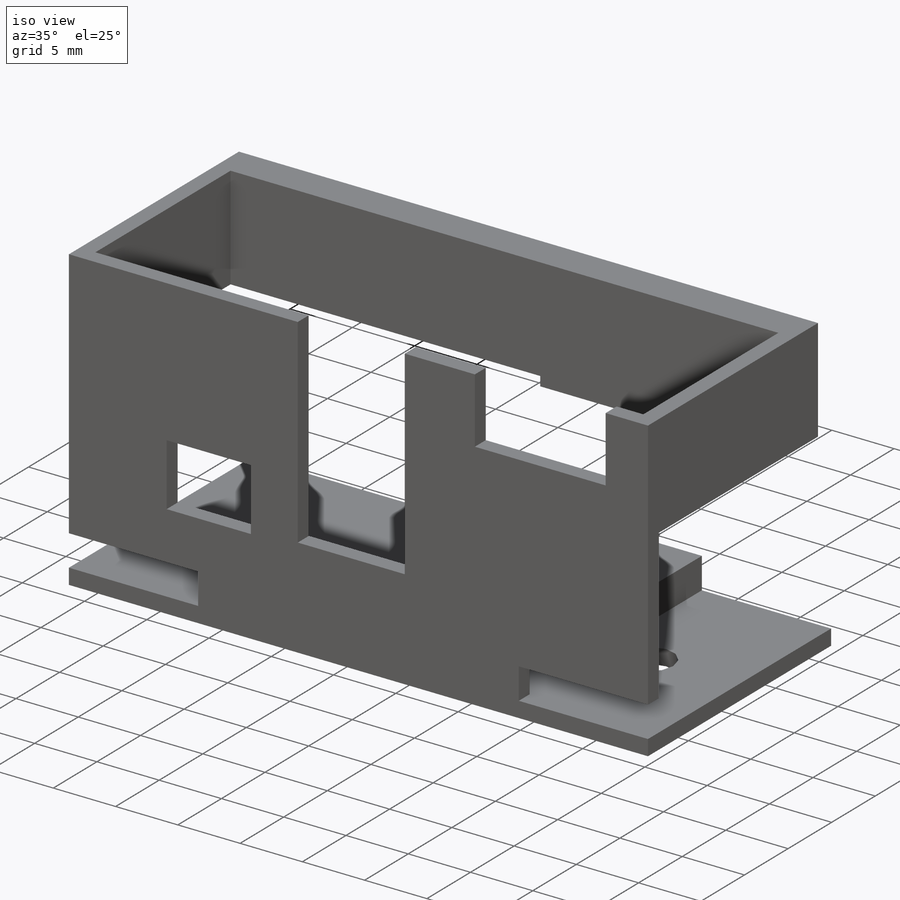
[diagram: iso view]
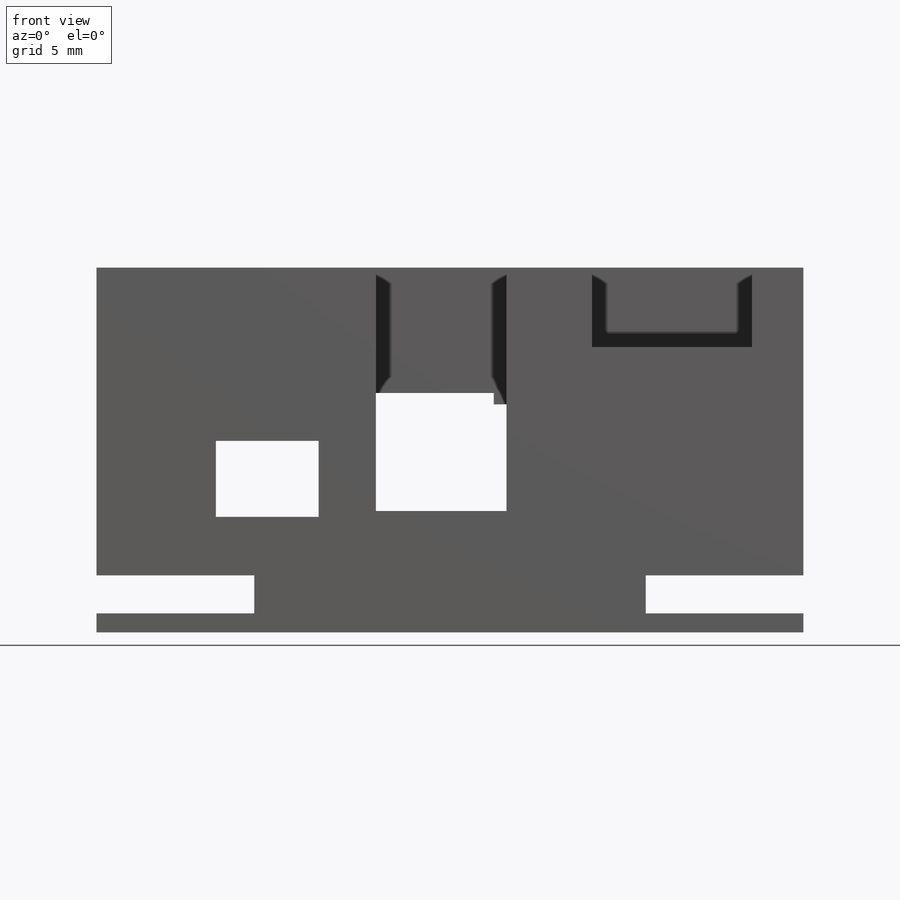
[diagram: front view]
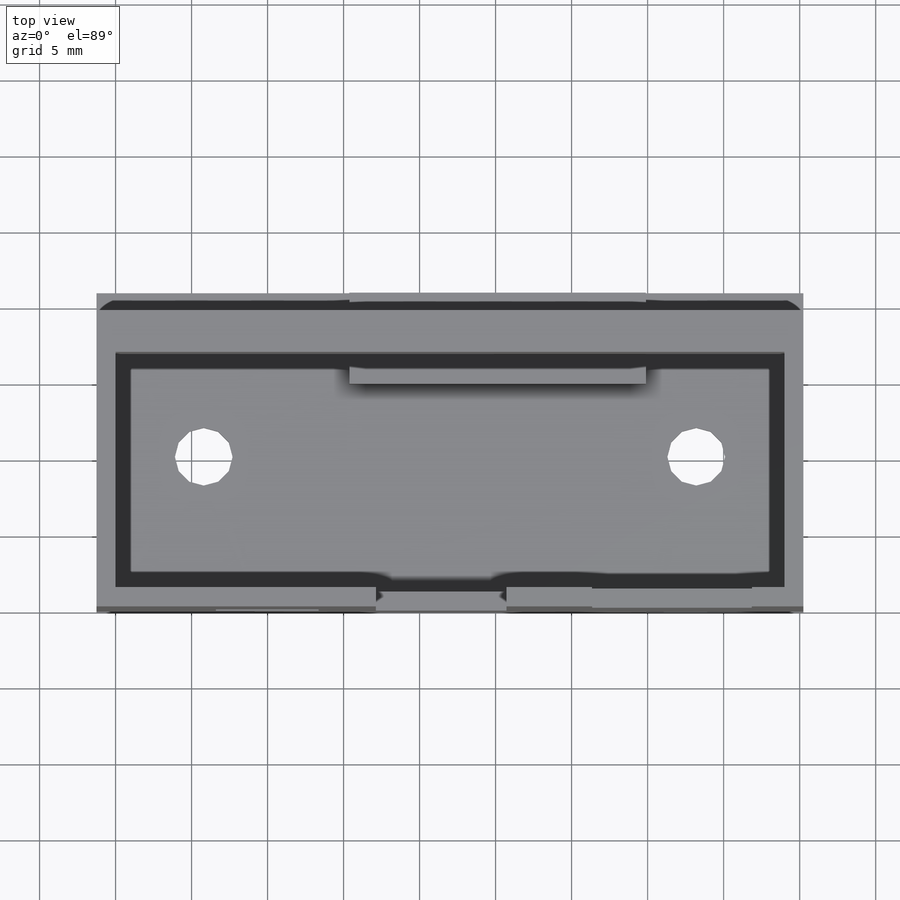
[diagram: top view]
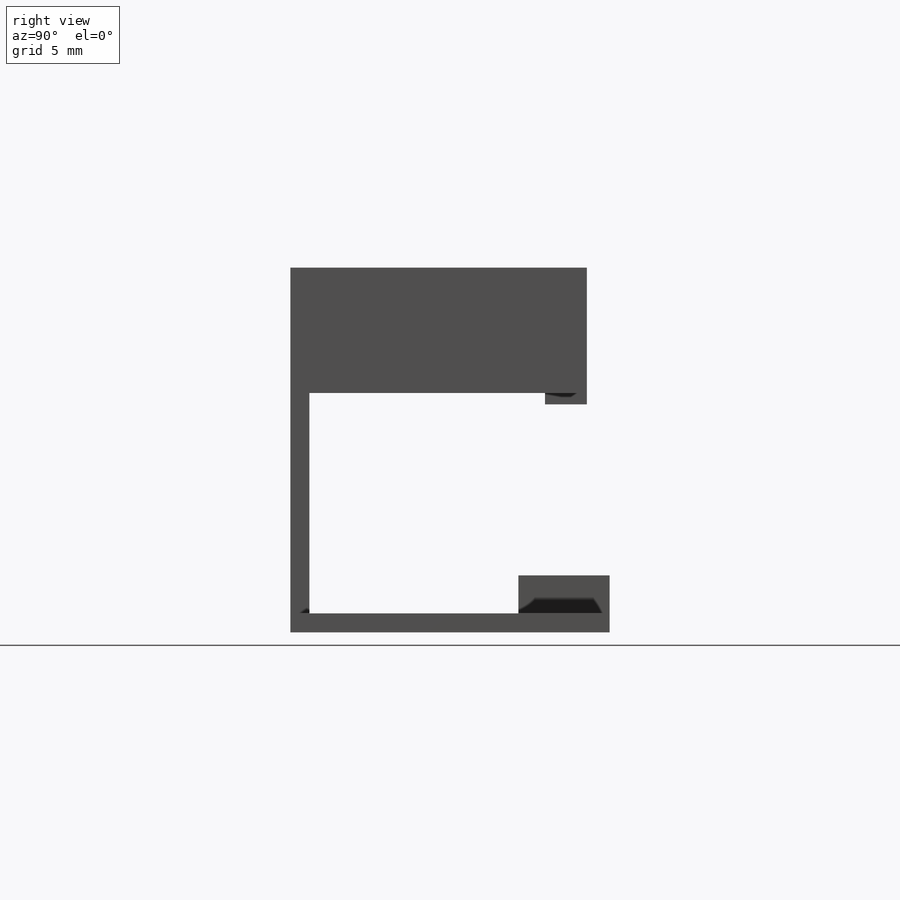
[diagram: right view]
SOLIDWORKS PART (.sldprt)
format: sldprt  version: not decoded by parser v0  size: 483,328 bytes
history: native  units: mm
features: sketch x12, cut_extrude x7, extrude x4, material x1, shell x1, plane x1 (+13 scaffold rows collapsed)
feature tree (39):
  scaffold x13  (default folders/planes/origin — collapsed)
  material  "Material <not specified>"
  sketch  "Sketch1"  dims[D1=44.0mm D2=22.75mm D5=46.5mm D3=1.25mm D4=1.25mm D6=1.25mm]
  extrude  "Boss-Extrude1"  Depth=21mm
  shell  "Shell1"  Thickness=1.25mm
  sketch  "Sketch2"  dims[D1=14.5mm]
  cut_extrude  "Cut-Extrude1"  [1 undecoded]
  sketch  "Sketch6"  dims[c1.D1=3.9mm c1.D3=~4.146516mm c2.D1=~4.408685mm c2.D2=3.5mm c3.D1=3.5mm c3.D2=9.0mm c3.D3=0.15mm c4.D1=0.15mm]
  sketch  "Sketch7"  dims[D1=1.25mm D2=3.0mm D3=2.5mm]
  cut_extrude  "Cut-Extrude5"  [1 undecoded]
  sketch  "Sketch9"  dims[D1=6.0mm D2=19.5mm]
  extrude  "Boss-Extrude3"  Depth=2.5mm
  sketch  "Sketch12"  dims[D1=1.5mm]
  cut_extrude  "Cut-Extrude7"  [1 undecoded]
  sketch  "Sketch13"  dims[D1=2.75mm]
  extrude  "Boss-Extrude4"  [1 undecoded]
  sketch  "Sketch15"  dims[D1=10.0mm]
  extrude  "Boss-Extrude5"  Depth=0.75mm
  sketch  "Sketch17"  dims[D1=0.0mm D2=0.0mm]
  sketch  "Sketch18"  dims[D1=1.5mm D2=1.0mm D3=1.5mm D4=1.0mm]
  cut_extrude  "Cut-Extrude8"  [1 undecoded]
  sketch  "Sketch22"  dims[D1=2.0mm D2=2.0mm D3=1.5mm]
  cut_extrude  "Cut-Extrude9"  [1 undecoded]
  plane  "Plane1"
  sketch  "Sketch25"  dims[c1.D3=0.25mm c1.D4=1.5mm c1.D5=0.25mm c2.D3=0.25mm c2.D4=0.75mm c2.D5=0.25mm c2.D1=0.0mm c2.D2=0.0mm]
  cut_extrude  "Cut-Extrude15"  [1 undecoded]
  cut_extrude  "Cut-Extrude16"  [1 undecoded]
decode coverage: 16 of 24 modeling features carry decoded parameters
note: ~ marks probable driven/reference dimensions
note: 8 parameter values undecoded
summary: no parameter record found for 8 features
note: suppression state not decoded; provenance and decode notes live in map.json
